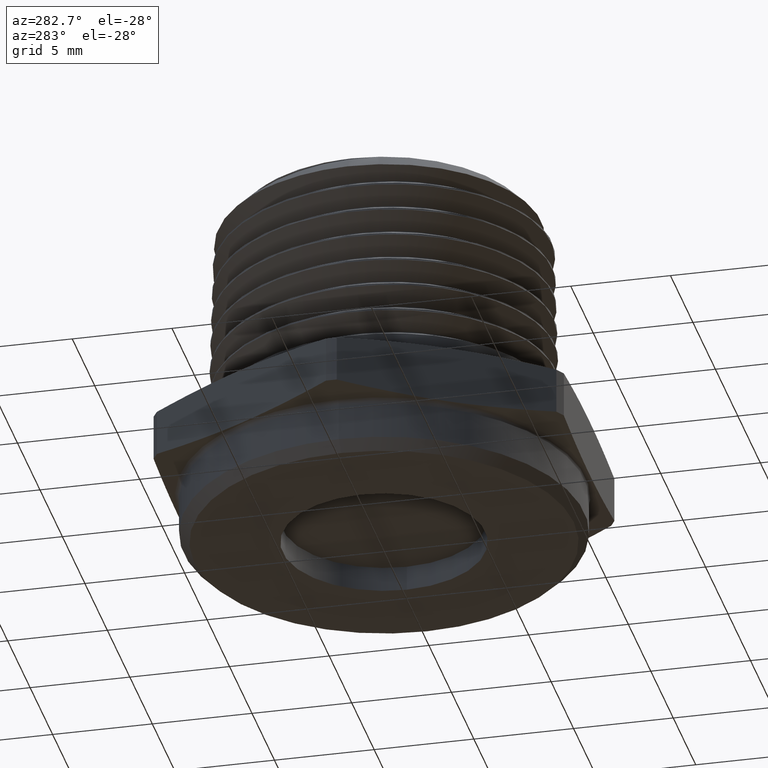
[diagram: clean part render]
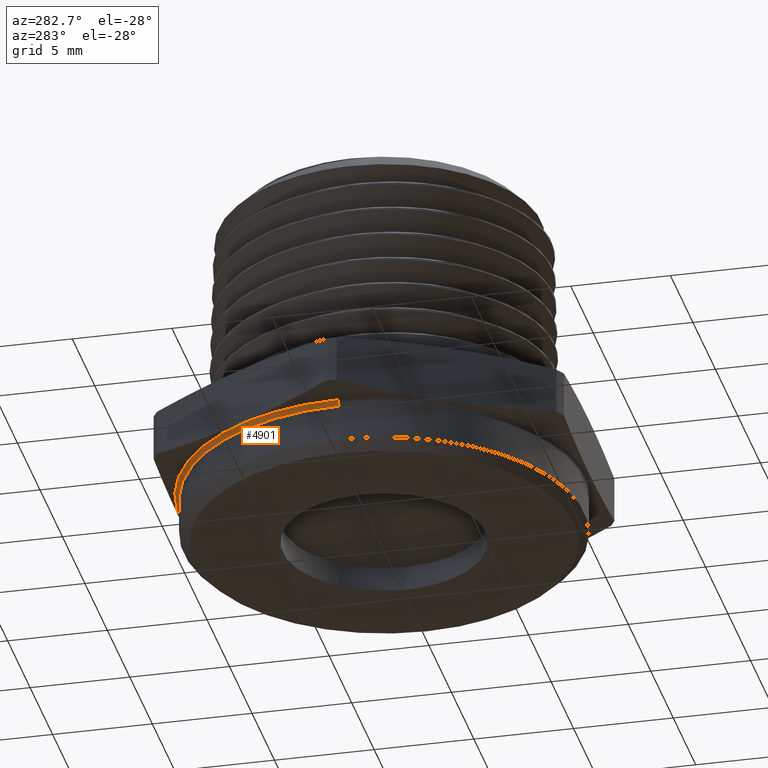
[diagram: same view with one face highlighted and labeled with its STEP entity id]
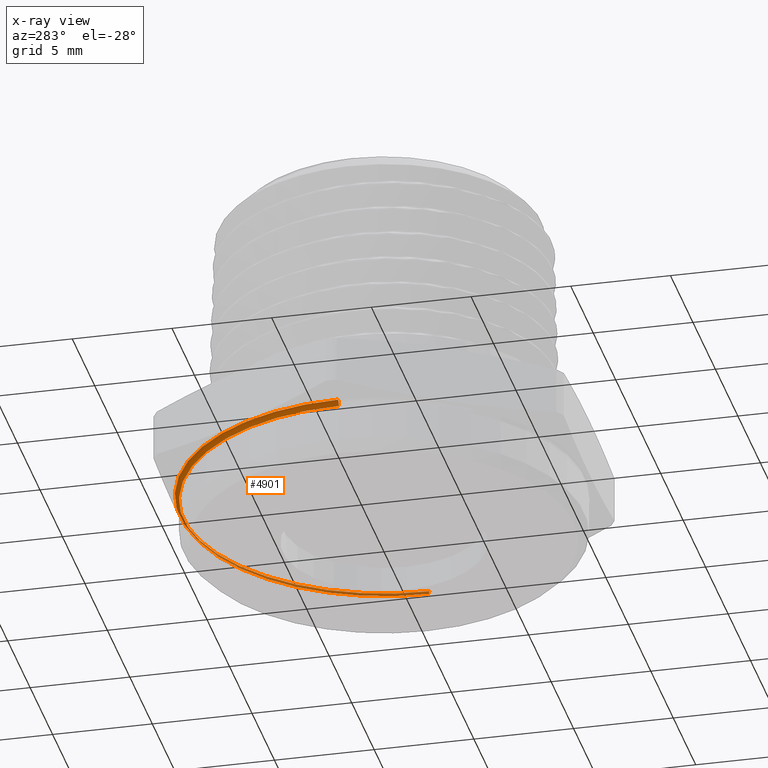
[diagram: x-ray of the same camera — body ghosted, the highlighted face saturated]
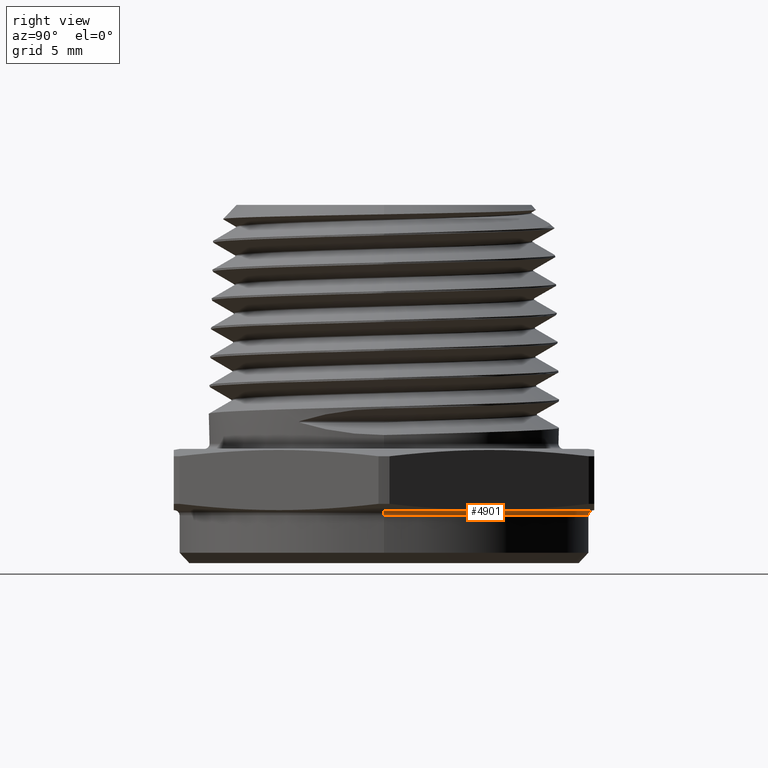
[diagram: same view with one face highlighted and labeled with its STEP entity id]
A machine part, auxiliary view. The second image highlights one B-rep face of the part: STEP entity #4901.
The next image is the same camera in x-ray: the body ghosted, the highlighted face saturated — about 32% of this face is hidden behind the body in this view.
A second angle (right view) of the same face is appended — the face is thin or edge-on in the first view.
In plain terms, the highlighted toroidal blend (fillet) surface has major radius 10.287 mm and minor (blend) radius 0.254 mm.
Its self-contained STEP definition (entity closure, byte-faithful):
#383 = CIRCLE ( 'NONE', #972, 0.3950000000000000200 ) ;
#422 = CIRCLE ( 'NONE', #981, 0.4029208830918225600 ) ;
#424 = CIRCLE ( 'NONE', #982, 0.01000000000000003000 ) ;
#511 = TOROIDAL_SURFACE ( 'NONE', #1018, 0.4050000000000000300, 0.01000000000000000000 ) ;
#512 = FACE_OUTER_BOUND ( 'NONE', #1139, .T. ) ;
#624 = ORIENTED_EDGE ( 'NONE', *, *, #882, .F. ) ;
#625 = ORIENTED_EDGE ( 'NONE', *, *, #797, .T. ) ;
#628 = ORIENTED_EDGE ( 'NONE', *, *, #845, .F. ) ;
#630 = ORIENTED_EDGE ( 'NONE', *, *, #883, .F. ) ;
#662 = VERTEX_POINT ( 'NONE', #5207 ) ;
#703 = VERTEX_POINT ( 'NONE', #5234 ) ;
#769 = VERTEX_POINT ( 'NONE', #5221 ) ;
#788 = VERTEX_POINT ( 'NONE', #5197 ) ;
#797 = EDGE_CURVE ( 'NONE', #769, #703, #1845, .T. ) ;
#845 = EDGE_CURVE ( 'NONE', #769, #788, #383, .T. ) ;
#882 = EDGE_CURVE ( 'NONE', #662, #703, #422, .T. ) ;
#883 = EDGE_CURVE ( 'NONE', #788, #662, #424, .T. ) ;
#954 = AXIS2_PLACEMENT_3D ( 'NONE', #5174, #5173, #5172 ) ;
#972 = AXIS2_PLACEMENT_3D ( 'NONE', #3548, #3549, #3550 ) ;
#981 = AXIS2_PLACEMENT_3D ( 'NONE', #4149, #4150, #4151 ) ;
#982 = AXIS2_PLACEMENT_3D ( 'NONE', #4153, #4154, #4155 ) ;
#1018 = AXIS2_PLACEMENT_3D ( 'NONE', #1821, #1819, #1823 ) ;
#1139 = EDGE_LOOP ( 'NONE', ( #630, #628, #625, #624 ) ) ;
#1819 = DIRECTION ( 'NONE',  ( -0.0000000000000000000, -0.0000000000000000000, -1.000000000000000000 ) ) ;
#1821 = CARTESIAN_POINT ( 'NONE',  ( 0.0000000000000000000, 0.0000000000000000000, -0.008097840331950143000 ) ) ;
#1823 = DIRECTION ( 'NONE',  ( -1.000000000000000000, 0.0000000000000000000, 0.0000000000000000000 ) ) ;
#1845 = CIRCLE ( 'NONE', #954, 0.01000000000000000000 ) ;
#3548 = CARTESIAN_POINT ( 'NONE',  ( 0.0000000000000000000, 0.0000000000000000000, -0.008097840331950146400 ) ) ;
#3549 = DIRECTION ( 'NONE',  ( -0.0000000000000000000, -0.0000000000000000000, -1.000000000000000000 ) ) ;
#3550 = DIRECTION ( 'NONE',  ( -1.000000000000000000, 0.0000000000000000000, 0.0000000000000000000 ) ) ;
#4149 = CARTESIAN_POINT ( 'NONE',  ( 0.0000000000000000000, 0.0000000000000000000, 0.001683635675387737400 ) ) ;
#4150 = DIRECTION ( 'NONE',  ( 0.0000000000000000000, 0.0000000000000000000, 1.000000000000000000 ) ) ;
#4151 = DIRECTION ( 'NONE',  ( 1.000000000000000000, 0.0000000000000000000, 0.0000000000000000000 ) ) ;
#4153 = CARTESIAN_POINT ( 'NONE',  ( 0.4050000000000000300, 4.959819536546781200E-017, -0.008097840331950143000 ) ) ;
#4154 = DIRECTION ( 'NONE',  ( -1.224646799147353200E-016, 1.000000000000000000, 0.0000000000000000000 ) ) ;
#4155 = DIRECTION ( 'NONE',  ( -1.000000000000000000, -1.224646799147346800E-016, 0.0000000000000000000 ) ) ;
#4901 = ADVANCED_FACE ( 'NONE', ( #512 ), #511, .F. ) ;
#5172 = DIRECTION ( 'NONE',  ( 0.0000000000000000000, 0.0000000000000000000, -1.000000000000000000 ) ) ;
#5173 = DIRECTION ( 'NONE',  ( 0.0000000000000000000, -1.000000000000000000, 0.0000000000000000000 ) ) ;
#5174 = CARTESIAN_POINT ( 'NONE',  ( -0.4050000000000000300, 0.0000000000000000000, -0.008097840331950143000 ) ) ;
#5197 = CARTESIAN_POINT ( 'NONE',  ( 0.3950000000000000200, 0.0000000000000000000, -0.008097840331950146400 ) ) ;
#5207 = CARTESIAN_POINT ( 'NONE',  ( 0.4029208830918216100, 0.0000000000000000000, 0.001683635675387737400 ) ) ;
#5221 = CARTESIAN_POINT ( 'NONE',  ( -0.3950000000000000200, 4.837354856632045600E-017, -0.008097840331950146400 ) ) ;
#5234 = CARTESIAN_POINT ( 'NONE',  ( -0.4029208830918216100, 4.934357697880242300E-017, 0.001683635675387737400 ) ) ;